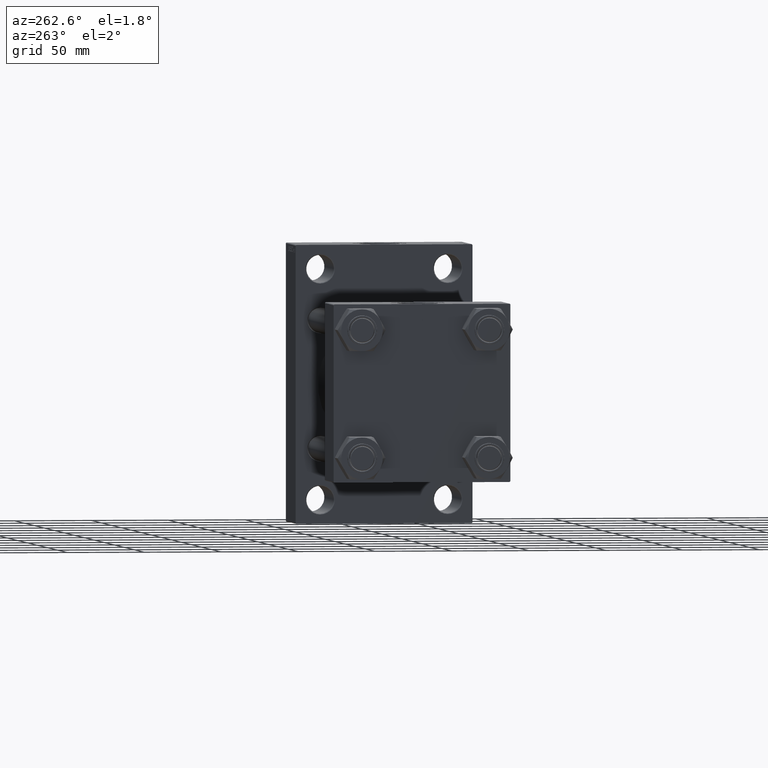
[diagram: clean part render]
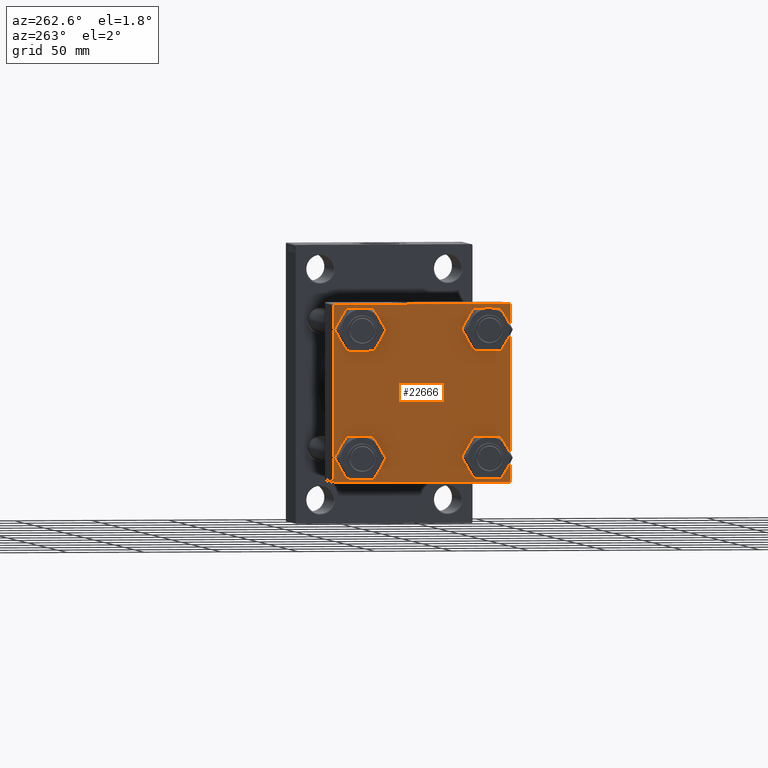
[diagram: same view with one face highlighted and labeled with its STEP entity id]
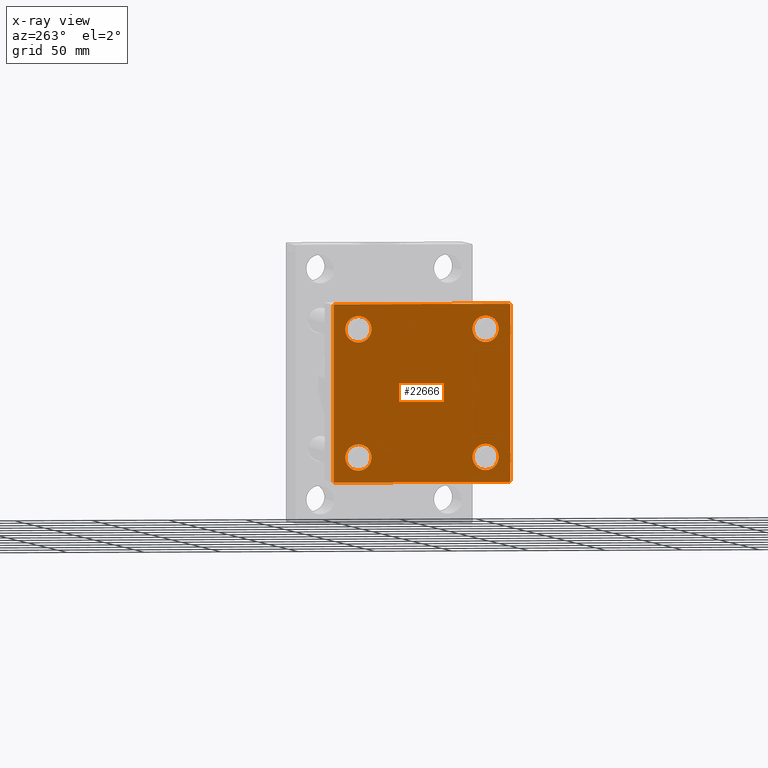
[diagram: x-ray of the same camera — body ghosted, the highlighted face saturated]
A machine part, auxiliary view. The second image highlights one B-rep face of the part: STEP entity #22666.
The next image is the same camera in x-ray: the body ghosted, the highlighted face saturated — about 0% of this face is hidden behind the body in this view.
In plain terms, the highlighted planar face has unit normal (-1, 0, 0).
Its self-contained STEP definition (entity closure, byte-faithful):
#248 = VERTEX_POINT ( 'NONE', #47843 ) ;
#2758 = VECTOR ( 'NONE', #31523, 1000.000000000000114 ) ;
#3061 = DIRECTION ( 'NONE',  ( 0.000000000000000000, 0.000000000000000000, 1.000000000000000000 ) ) ;
#4543 = VERTEX_POINT ( 'NONE', #41279 ) ;
#4956 = CIRCLE ( 'NONE', #9900, 8.499999999999992895 ) ;
#5215 = DIRECTION ( 'NONE',  ( 0.000000000000000000, 0.7071067811865573427, -0.7071067811865376918 ) ) ;
#5606 = CARTESIAN_POINT ( 'NONE',  ( 0.000000000000000000, 0.000000000000000000, 0.000000000000000000 ) ) ;
#5847 = DIRECTION ( 'NONE',  ( -0.000000000000000000, 0.000000000000000000, 1.000000000000000000 ) ) ;
#6016 = EDGE_CURVE ( 'NONE', #13958, #23563, #25434, .T. ) ;
#6259 = EDGE_CURVE ( 'NONE', #17939, #42694, #19600, .T. ) ;
#6348 = DIRECTION ( 'NONE',  ( 0.000000000000000000, 0.000000000000000000, 1.000000000000000000 ) ) ;
#6648 = DIRECTION ( 'NONE',  ( 1.000000000000000000, -0.000000000000000000, 0.000000000000000000 ) ) ;
#6748 = CARTESIAN_POINT ( 'NONE',  ( 0.000000000000000000, -57.50000000000000711, 57.49999999999999289 ) ) ;
#7327 = CARTESIAN_POINT ( 'NONE',  ( 0.000000000000000000, 57.00000000000002132, -57.49999999999999289 ) ) ;
#7371 = LINE ( 'NONE', #23321, #2758 ) ;
#7927 = EDGE_CURVE ( 'NONE', #18395, #13958, #20912, .T. ) ;
#8906 = AXIS2_PLACEMENT_3D ( 'NONE', #33589, #25881, #6348 ) ;
#9036 = DIRECTION ( 'NONE',  ( 1.000000000000000000, -0.000000000000000000, 0.000000000000000000 ) ) ;
#9208 = FACE_BOUND ( 'NONE', #25310, .T. ) ;
#9392 = EDGE_CURVE ( 'NONE', #23061, #4543, #22007, .T. ) ;
#9713 = FACE_BOUND ( 'NONE', #10919, .T. ) ;
#9900 = AXIS2_PLACEMENT_3D ( 'NONE', #31091, #39271, #35679 ) ;
#10261 = DIRECTION ( 'NONE',  ( 0.000000000000000000, 0.000000000000000000, -1.000000000000000000 ) ) ;
#10696 = EDGE_CURVE ( 'NONE', #33555, #35127, #25125, .T. ) ;
#10919 = EDGE_LOOP ( 'NONE', ( #42823, #35678 ) ) ;
#11266 = VECTOR ( 'NONE', #47451, 1000.000000000000114 ) ;
#12359 = CARTESIAN_POINT ( 'NONE',  ( 0.000000000000000000, 41.34999999999999432, -49.85000000000000142 ) ) ;
#12626 = CARTESIAN_POINT ( 'NONE',  ( 0.000000000000000000, -41.34999999999998721, -41.35000000000000853 ) ) ;
#12731 = ORIENTED_EDGE ( 'NONE', *, *, #47646, .T. ) ;
#13958 = VERTEX_POINT ( 'NONE', #37139 ) ;
#14051 = CARTESIAN_POINT ( 'NONE',  ( 0.000000000000000000, 57.49999999999999289, -57.49999999999999289 ) ) ;
#14392 = CARTESIAN_POINT ( 'NONE',  ( 0.000000000000000000, -57.00000000000003553, 57.49999999999999289 ) ) ;
#14539 = ORIENTED_EDGE ( 'NONE', *, *, #27761, .T. ) ;
#14736 = AXIS2_PLACEMENT_3D ( 'NONE', #48551, #18029, #37280 ) ;
#15407 = EDGE_CURVE ( 'NONE', #26008, #20846, #41055, .T. ) ;
#16030 = AXIS2_PLACEMENT_3D ( 'NONE', #12626, #19604, #35507 ) ;
#16279 = EDGE_CURVE ( 'NONE', #18395, #22403, #32700, .T. ) ;
#17611 = ORIENTED_EDGE ( 'NONE', *, *, #10696, .T. ) ;
#17939 = VERTEX_POINT ( 'NONE', #47623 ) ;
#18029 = DIRECTION ( 'NONE',  ( 1.000000000000000000, -0.000000000000000000, 0.000000000000000000 ) ) ;
#18146 = AXIS2_PLACEMENT_3D ( 'NONE', #47571, #23246, #27584 ) ;
#18395 = VERTEX_POINT ( 'NONE', #27458 ) ;
#18425 = ORIENTED_EDGE ( 'NONE', *, *, #20110, .T. ) ;
#18669 = CARTESIAN_POINT ( 'NONE',  ( 0.000000000000000000, 41.34999999999999432, 41.35000000000000142 ) ) ;
#19138 = LINE ( 'NONE', #30958, #45325 ) ;
#19189 = ORIENTED_EDGE ( 'NONE', *, *, #34842, .F. ) ;
#19600 = CIRCLE ( 'NONE', #8906, 8.499999999999992895 ) ;
#19604 = DIRECTION ( 'NONE',  ( 1.000000000000000000, -0.000000000000000000, 0.000000000000000000 ) ) ;
#20027 = EDGE_LOOP ( 'NONE', ( #47097, #14539, #17611, #43453, #19189, #35247, #45868, #43707 ) ) ;
#20110 = EDGE_CURVE ( 'NONE', #44967, #44382, #4956, .T. ) ;
#20198 = VECTOR ( 'NONE', #31170, 1000.000000000000000 ) ;
#20634 = CARTESIAN_POINT ( 'NONE',  ( 0.000000000000000000, 41.34999999999999432, 32.85000000000000853 ) ) ;
#20846 = VERTEX_POINT ( 'NONE', #25005 ) ;
#20912 = LINE ( 'NONE', #43746, #41760 ) ;
#21029 = VERTEX_POINT ( 'NONE', #34232 ) ;
#21300 = DIRECTION ( 'NONE',  ( -1.000000000000000000, 0.000000000000000000, -0.000000000000000000 ) ) ;
#21394 = CARTESIAN_POINT ( 'NONE',  ( 0.000000000000000000, 57.49999999999999289, 57.50000000000000711 ) ) ;
#22007 = CIRCLE ( 'NONE', #14736, 8.499999999999992895 ) ;
#22403 = VERTEX_POINT ( 'NONE', #14392 ) ;
#22666 = ADVANCED_FACE ( 'NONE', ( #44372, #9208, #48467, #9713, #25394 ), #41020, .T. ) ;
#23061 = VERTEX_POINT ( 'NONE', #49932 ) ;
#23246 = DIRECTION ( 'NONE',  ( 1.000000000000000000, -0.000000000000000000, 0.000000000000000000 ) ) ;
#23321 = CARTESIAN_POINT ( 'NONE',  ( -0.000000000000000000, -57.25000000000081712, 57.24999999999922551 ) ) ;
#23563 = VERTEX_POINT ( 'NONE', #42302 ) ;
#23749 = VECTOR ( 'NONE', #40759, 1000.000000000000000 ) ;
#23889 = EDGE_CURVE ( 'NONE', #20846, #26008, #37917, .T. ) ;
#24465 = EDGE_CURVE ( 'NONE', #42694, #17939, #26462, .T. ) ;
#25005 = CARTESIAN_POINT ( 'NONE',  ( 0.000000000000000000, 41.34999999999999432, 49.85000000000000142 ) ) ;
#25125 = LINE ( 'NONE', #14051, #23749 ) ;
#25310 = EDGE_LOOP ( 'NONE', ( #32288, #34109 ) ) ;
#25394 = FACE_OUTER_BOUND ( 'NONE', #20027, .T. ) ;
#25434 = LINE ( 'NONE', #29804, #33513 ) ;
#25523 = ORIENTED_EDGE ( 'NONE', *, *, #6259, .T. ) ;
#25881 = DIRECTION ( 'NONE',  ( 1.000000000000000000, -0.000000000000000000, 0.000000000000000000 ) ) ;
#26008 = VERTEX_POINT ( 'NONE', #20634 ) ;
#26283 = LINE ( 'NONE', #6748, #20198 ) ;
#26462 = CIRCLE ( 'NONE', #46119, 8.499999999999992895 ) ;
#26875 = DIRECTION ( 'NONE',  ( 1.000000000000000000, -0.000000000000000000, 0.000000000000000000 ) ) ;
#27458 = CARTESIAN_POINT ( 'NONE',  ( 0.000000000000000000, 57.00000000000000711, 57.50000000000000711 ) ) ;
#27584 = DIRECTION ( 'NONE',  ( 0.000000000000000000, 0.000000000000000000, 1.000000000000000000 ) ) ;
#27761 = EDGE_CURVE ( 'NONE', #23563, #33555, #19138, .T. ) ;
#28643 = ORIENTED_EDGE ( 'NONE', *, *, #24465, .T. ) ;
#29804 = CARTESIAN_POINT ( 'NONE',  ( 0.000000000000000000, 57.49999999999999289, 57.50000000000000711 ) ) ;
#30007 = CIRCLE ( 'NONE', #16030, 8.499999999999992895 ) ;
#30569 = EDGE_CURVE ( 'NONE', #248, #22403, #7371, .T. ) ;
#30958 = CARTESIAN_POINT ( 'NONE',  ( 0.000000000000000000, 57.25000000000081712, -57.24999999999922551 ) ) ;
#31091 = CARTESIAN_POINT ( 'NONE',  ( 0.000000000000000000, -41.34999999999998721, 41.35000000000000853 ) ) ;
#31170 = DIRECTION ( 'NONE',  ( 0.000000000000000000, 0.000000000000000000, -1.000000000000000000 ) ) ;
#31523 = DIRECTION ( 'NONE',  ( -0.000000000000000000, 0.7071067811865376918, 0.7071067811865573427 ) ) ;
#32182 = CARTESIAN_POINT ( 'NONE',  ( 0.000000000000000000, 41.34999999999999432, -41.35000000000000142 ) ) ;
#32288 = ORIENTED_EDGE ( 'NONE', *, *, #34020, .T. ) ;
#32700 = LINE ( 'NONE', #21394, #49288 ) ;
#32975 = CARTESIAN_POINT ( 'NONE',  ( 0.000000000000000000, -41.34999999999998721, 49.85000000000000853 ) ) ;
#32985 = AXIS2_PLACEMENT_3D ( 'NONE', #5606, #21300, #5847 ) ;
#33513 = VECTOR ( 'NONE', #10261, 1000.000000000000000 ) ;
#33555 = VERTEX_POINT ( 'NONE', #7327 ) ;
#33589 = CARTESIAN_POINT ( 'NONE',  ( 0.000000000000000000, 41.34999999999999432, -41.35000000000000142 ) ) ;
#34020 = EDGE_CURVE ( 'NONE', #4543, #23061, #30007, .T. ) ;
#34109 = ORIENTED_EDGE ( 'NONE', *, *, #9392, .T. ) ;
#34232 = CARTESIAN_POINT ( 'NONE',  ( 0.000000000000000000, -57.50000000000000711, -57.00000000000000711 ) ) ;
#34842 = EDGE_CURVE ( 'NONE', #248, #21029, #26283, .T. ) ;
#35127 = VERTEX_POINT ( 'NONE', #37265 ) ;
#35247 = ORIENTED_EDGE ( 'NONE', *, *, #30569, .T. ) ;
#35507 = DIRECTION ( 'NONE',  ( 0.000000000000000000, 0.000000000000000000, 1.000000000000000000 ) ) ;
#35678 = ORIENTED_EDGE ( 'NONE', *, *, #15407, .T. ) ;
#35679 = DIRECTION ( 'NONE',  ( 0.000000000000000000, 0.000000000000000000, 1.000000000000000000 ) ) ;
#35805 = DIRECTION ( 'NONE',  ( -0.000000000000000000, -0.7071067811865376918, -0.7071067811865573427 ) ) ;
#36448 = CARTESIAN_POINT ( 'NONE',  ( 0.000000000000000000, -41.34999999999998721, 32.85000000000001563 ) ) ;
#37139 = CARTESIAN_POINT ( 'NONE',  ( 0.000000000000000000, 57.49999999999999289, 57.00000000000003553 ) ) ;
#37265 = CARTESIAN_POINT ( 'NONE',  ( 0.000000000000000000, -57.00000000000000711, -57.50000000000000711 ) ) ;
#37280 = DIRECTION ( 'NONE',  ( 0.000000000000000000, 0.000000000000000000, 1.000000000000000000 ) ) ;
#37917 = CIRCLE ( 'NONE', #44453, 8.499999999999992895 ) ;
#37977 = CARTESIAN_POINT ( 'NONE',  ( 0.000000000000000000, -41.34999999999998721, 41.35000000000000853 ) ) ;
#38059 = AXIS2_PLACEMENT_3D ( 'NONE', #37977, #6648, #3061 ) ;
#38556 = EDGE_LOOP ( 'NONE', ( #12731, #18425 ) ) ;
#39255 = LINE ( 'NONE', #46942, #11266 ) ;
#39271 = DIRECTION ( 'NONE',  ( 1.000000000000000000, -0.000000000000000000, 0.000000000000000000 ) ) ;
#39707 = CIRCLE ( 'NONE', #38059, 8.499999999999992895 ) ;
#40759 = DIRECTION ( 'NONE',  ( 0.000000000000000000, -1.000000000000000000, -1.206764157201257045E-16 ) ) ;
#40857 = DIRECTION ( 'NONE',  ( 0.000000000000000000, 0.000000000000000000, 1.000000000000000000 ) ) ;
#41020 = PLANE ( 'NONE',  #32985 ) ;
#41023 = EDGE_CURVE ( 'NONE', #35127, #21029, #39255, .T. ) ;
#41055 = CIRCLE ( 'NONE', #18146, 8.499999999999992895 ) ;
#41279 = CARTESIAN_POINT ( 'NONE',  ( 0.000000000000000000, -41.34999999999998721, -32.85000000000001563 ) ) ;
#41760 = VECTOR ( 'NONE', #5215, 1000.000000000000114 ) ;
#42302 = CARTESIAN_POINT ( 'NONE',  ( 0.000000000000000000, 57.49999999999999289, -57.00000000000000711 ) ) ;
#42694 = VERTEX_POINT ( 'NONE', #12359 ) ;
#42823 = ORIENTED_EDGE ( 'NONE', *, *, #23889, .T. ) ;
#43453 = ORIENTED_EDGE ( 'NONE', *, *, #41023, .T. ) ;
#43707 = ORIENTED_EDGE ( 'NONE', *, *, #7927, .T. ) ;
#43746 = CARTESIAN_POINT ( 'NONE',  ( 0.000000000000000000, 57.24999999999922551, 57.25000000000081712 ) ) ;
#44372 = FACE_BOUND ( 'NONE', #38556, .T. ) ;
#44382 = VERTEX_POINT ( 'NONE', #32975 ) ;
#44453 = AXIS2_PLACEMENT_3D ( 'NONE', #18669, #26875, #45843 ) ;
#44967 = VERTEX_POINT ( 'NONE', #36448 ) ;
#45325 = VECTOR ( 'NONE', #35805, 1000.000000000000114 ) ;
#45843 = DIRECTION ( 'NONE',  ( 0.000000000000000000, 0.000000000000000000, 1.000000000000000000 ) ) ;
#45868 = ORIENTED_EDGE ( 'NONE', *, *, #16279, .F. ) ;
#46119 = AXIS2_PLACEMENT_3D ( 'NONE', #32182, #9036, #40857 ) ;
#46942 = CARTESIAN_POINT ( 'NONE',  ( 0.000000000000000000, -57.25000000000000711, -57.25000000000000711 ) ) ;
#47097 = ORIENTED_EDGE ( 'NONE', *, *, #6016, .T. ) ;
#47451 = DIRECTION ( 'NONE',  ( 0.000000000000000000, -0.7071067811865474617, 0.7071067811865474617 ) ) ;
#47571 = CARTESIAN_POINT ( 'NONE',  ( 0.000000000000000000, 41.34999999999999432, 41.35000000000000142 ) ) ;
#47623 = CARTESIAN_POINT ( 'NONE',  ( 0.000000000000000000, 41.34999999999999432, -32.85000000000000853 ) ) ;
#47646 = EDGE_CURVE ( 'NONE', #44382, #44967, #39707, .T. ) ;
#47843 = CARTESIAN_POINT ( 'NONE',  ( 0.000000000000000000, -57.50000000000000711, 57.00000000000000711 ) ) ;
#48467 = FACE_BOUND ( 'NONE', #49962, .T. ) ;
#48551 = CARTESIAN_POINT ( 'NONE',  ( 0.000000000000000000, -41.34999999999998721, -41.35000000000000853 ) ) ;
#48811 = DIRECTION ( 'NONE',  ( 0.000000000000000000, -1.000000000000000000, -1.206764157201257045E-16 ) ) ;
#49288 = VECTOR ( 'NONE', #48811, 1000.000000000000000 ) ;
#49932 = CARTESIAN_POINT ( 'NONE',  ( 0.000000000000000000, -41.34999999999998721, -49.85000000000000853 ) ) ;
#49962 = EDGE_LOOP ( 'NONE', ( #25523, #28643 ) ) ;